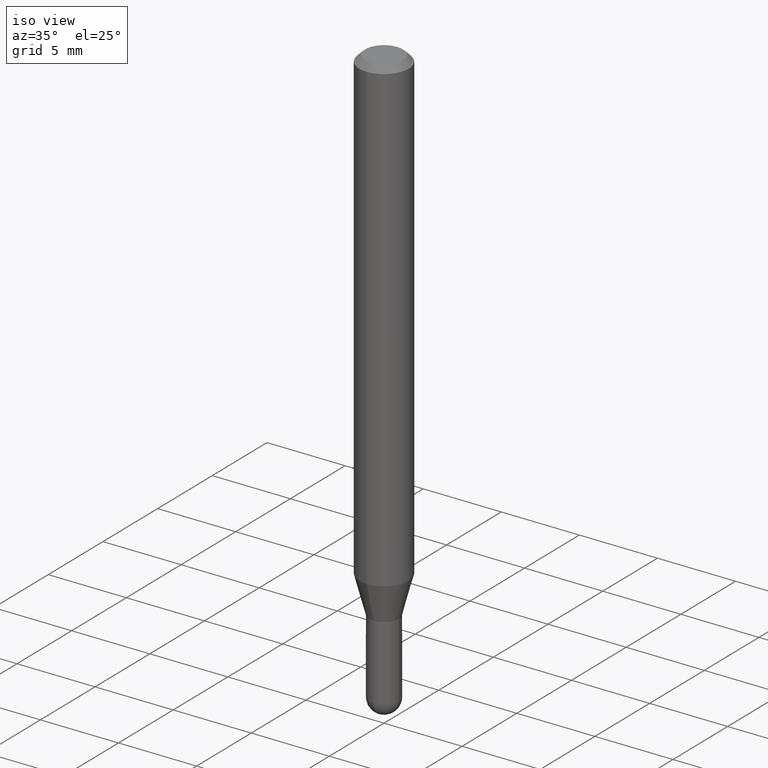
[diagram: clean part render]
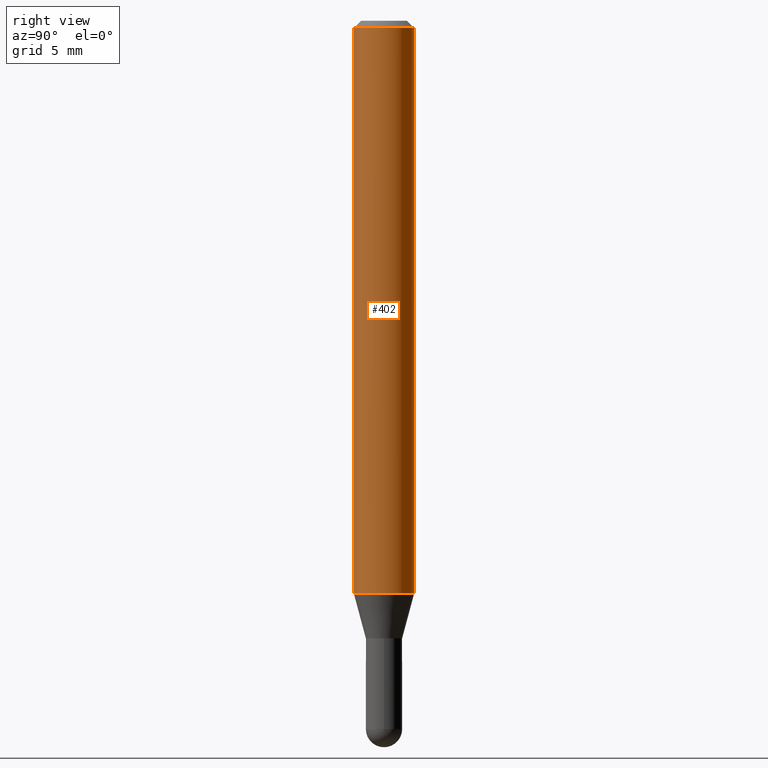
[diagram: tour spotlight — one face highlighted and labeled with its STEP entity id]
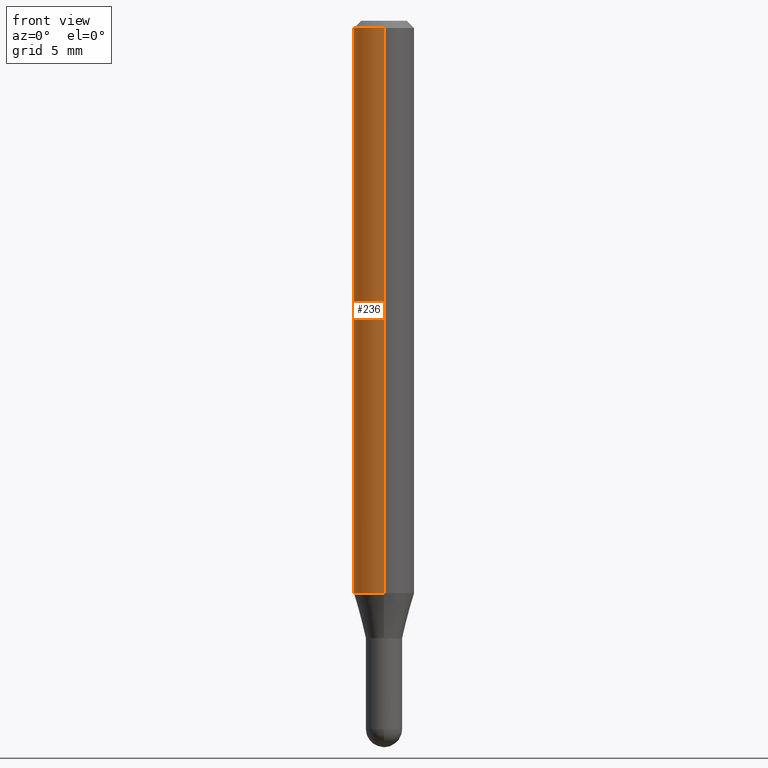
[diagram: tour spotlight — one face highlighted and labeled with its STEP entity id]
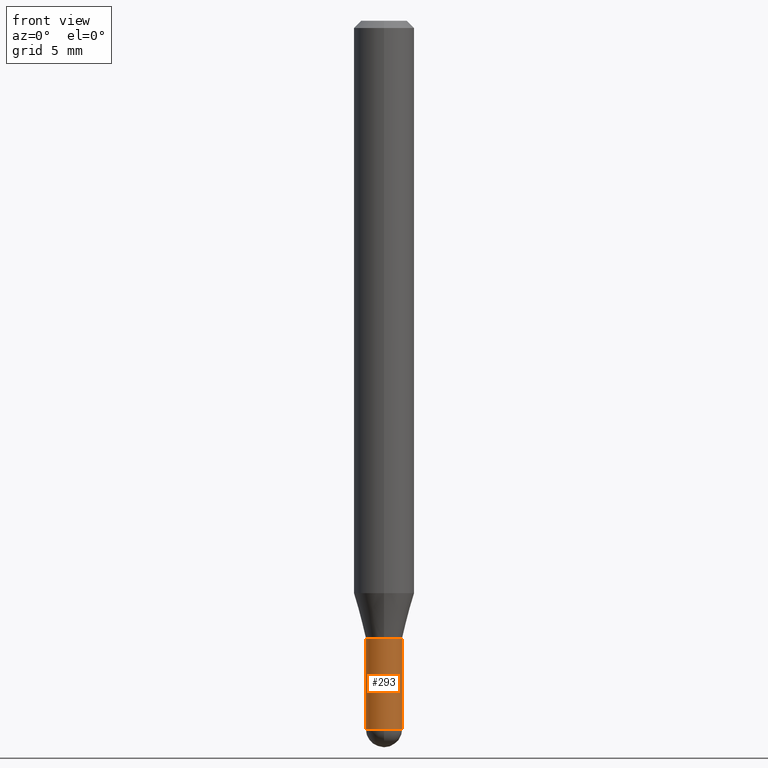
[diagram: tour spotlight — one face highlighted and labeled with its STEP entity id]
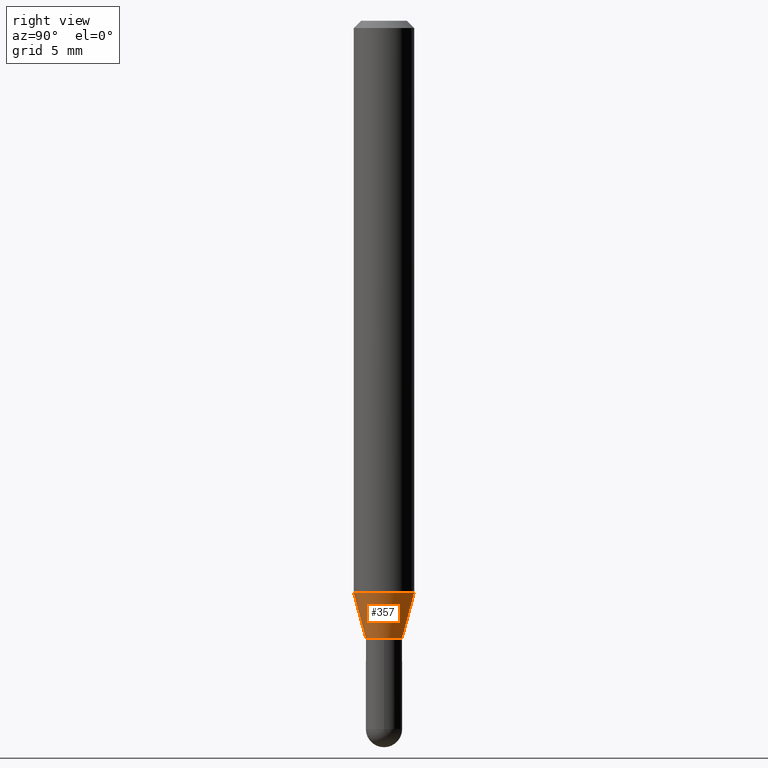
[diagram: tour spotlight — one face highlighted and labeled with its STEP entity id]
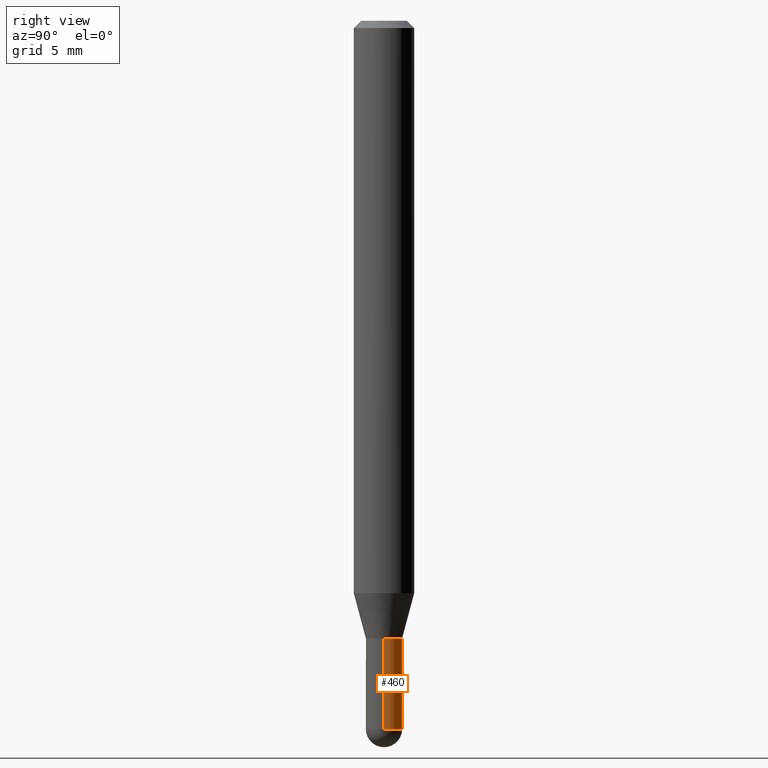
[diagram: tour spotlight — one face highlighted and labeled with its STEP entity id]
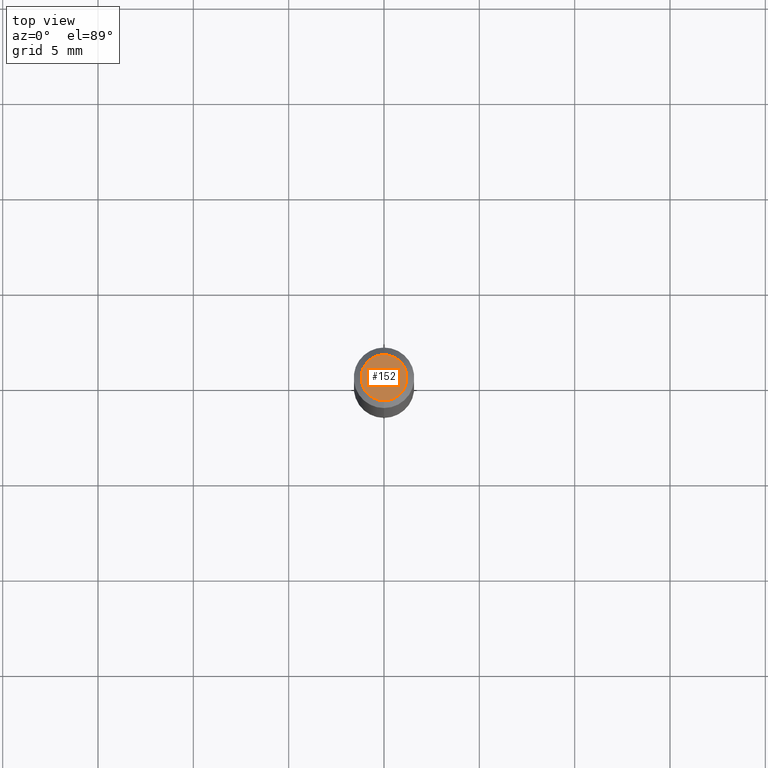
[diagram: tour spotlight — one face highlighted and labeled with its STEP entity id]
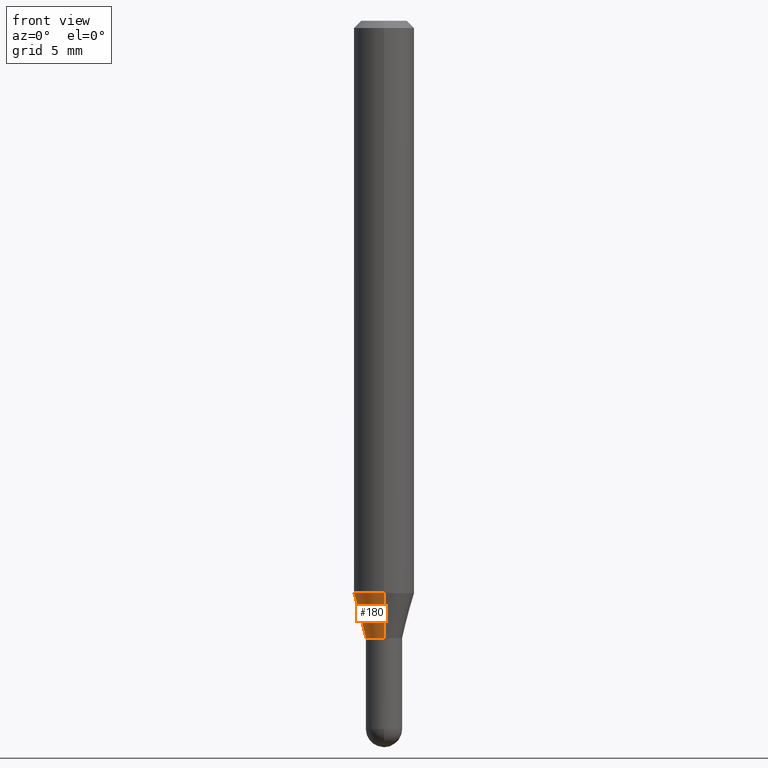
[diagram: tour spotlight — one face highlighted and labeled with its STEP entity id]
A machine part: a face-by-face anatomy tour. The part has 17 B-rep faces; the first image is the clean iso view, then the 7 largest visible faces are spotlighted one at a time (largest first), each with its STEP entity span.

Face 1 — right view, entity #402. In plain terms, the highlighted cylindrical surface (edge-blend (fillet) strip) has radius 1.5875 mm, axis along (-0, 0, 1).
Definition (entity closure, byte-faithful):
#33 = DIRECTION ( 'NONE',  ( -2.445363330842566879E-29, 3.491632385536988923E-15, 1.000000000000000000 ) ) ;
#34 = CARTESIAN_POINT ( 'NONE',  ( 2.889682741982522201E-29, -4.126057554955246622E-15, -1.181698729810781057 ) ) ;
#38 = LINE ( 'NONE', #351, #88 ) ;
#41 = AXIS2_PLACEMENT_3D ( 'NONE', #273, #426, #100 ) ;
#70 = AXIS2_PLACEMENT_3D ( 'NONE', #73, #33, #462 ) ;
#73 = CARTESIAN_POINT ( 'NONE',  ( 3.668044996263852701E-31, -5.237448578305486515E-17, -0.01500000000000000812 ) ) ;
#75 = VERTEX_POINT ( 'NONE', #299 ) ;
#87 = CIRCLE ( 'NONE', #417, 0.06250000000000000000 ) ;
#88 = VECTOR ( 'NONE', #508, 39.37007874015748143 ) ;
#100 = DIRECTION ( 'NONE',  ( -6.982962677686265922E-15, -1.000000000000000000, 3.491632385536988923E-15 ) ) ;
#127 = DIRECTION ( 'NONE',  ( -2.445363330842566879E-29, 3.491632385536988923E-15, 1.000000000000000000 ) ) ;
#157 = VERTEX_POINT ( 'NONE', #192 ) ;
#166 = DIRECTION ( 'NONE',  ( -6.982962677686265922E-15, -1.000000000000000000, 4.370956789862821150E-15 ) ) ;
#174 = CARTESIAN_POINT ( 'NONE',  ( 4.440892098500915082E-16, 0.06249999999999993755, -0.01500000000000022669 ) ) ;
#189 = EDGE_CURVE ( 'NONE', #75, #288, #385, .T. ) ;
#192 = CARTESIAN_POINT ( 'NONE',  ( -4.364351673553630239E-16, -0.06250000000000416334, -1.181698729810780613 ) ) ;
#201 = EDGE_CURVE ( 'NONE', #157, #75, #87, .T. ) ;
#268 = CYLINDRICAL_SURFACE ( 'NONE', #41, 0.06250000000000000000 ) ;
#273 = CARTESIAN_POINT ( 'NONE',  ( 0.000000000000000000, 0.000000000000000000, 0.000000000000000000 ) ) ;
#275 = CARTESIAN_POINT ( 'NONE',  ( 4.440892098500625669E-16, 0.06250000000000000000, -2.182270240960618077E-16 ) ) ;
#288 = VERTEX_POINT ( 'NONE', #174 ) ;
#290 = EDGE_LOOP ( 'NONE', ( #459, #425, #327, #370 ) ) ;
#299 = CARTESIAN_POINT ( 'NONE',  ( 4.440892098500911138E-16, 0.06249999999999584360, -1.181698729810781279 ) ) ;
#304 = DIRECTION ( 'NONE',  ( -2.445363330842566599E-29, 3.491632385536988923E-15, 1.000000000000000000 ) ) ;
#327 = ORIENTED_EDGE ( 'NONE', *, *, #422, .F. ) ;
#340 = VERTEX_POINT ( 'NONE', #492 ) ;
#350 = VECTOR ( 'NONE', #304, 39.37007874015748143 ) ;
#351 = CARTESIAN_POINT ( 'NONE',  ( -4.364351673553916201E-16, -0.06250000000000000000, 2.182270240960618077E-16 ) ) ;
#370 = ORIENTED_EDGE ( 'NONE', *, *, #499, .F. ) ;
#385 = LINE ( 'NONE', #275, #350 ) ;
#402 = ADVANCED_FACE ( 'NONE', ( #461 ), #268, .T. ) ;
#417 = AXIS2_PLACEMENT_3D ( 'NONE', #34, #127, #166 ) ;
#422 = EDGE_CURVE ( 'NONE', #340, #288, #481, .T. ) ;
#425 = ORIENTED_EDGE ( 'NONE', *, *, #189, .T. ) ;
#426 = DIRECTION ( 'NONE',  ( -2.445363330842566879E-29, 3.491632385536988923E-15, 1.000000000000000000 ) ) ;
#459 = ORIENTED_EDGE ( 'NONE', *, *, #201, .T. ) ;
#461 = FACE_OUTER_BOUND ( 'NONE', #290, .T. ) ;
#462 = DIRECTION ( 'NONE',  ( -6.982962677686265922E-15, -1.000000000000000000, 3.483106191921935554E-15 ) ) ;
#481 = CIRCLE ( 'NONE', #70, 0.06250000000000000000 ) ;
#492 = CARTESIAN_POINT ( 'NONE',  ( -4.364351673553912750E-16, -0.06250000000000005551, -0.01499999999999979128 ) ) ;
#499 = EDGE_CURVE ( 'NONE', #157, #340, #38, .T. ) ;
#508 = DIRECTION ( 'NONE',  ( -2.445363330842566599E-29, 3.491632385536988923E-15, 1.000000000000000000 ) ) ;

Face 2 — front view, entity #236. In plain terms, the highlighted cylindrical surface (edge-blend (fillet) strip) has radius 1.5875 mm, axis along (-0, 0, 1).
Definition (entity closure, byte-faithful):
#8 = DIRECTION ( 'NONE',  ( -2.445363330842566879E-29, 3.491632385536988923E-15, 1.000000000000000000 ) ) ;
#16 = DIRECTION ( 'NONE',  ( -6.982962677686265922E-15, -1.000000000000000000, 3.483106191921935554E-15 ) ) ;
#21 = CIRCLE ( 'NONE', #241, 0.06250000000000000000 ) ;
#28 = DIRECTION ( 'NONE',  ( -6.982962677686265922E-15, -1.000000000000000000, 4.370956789862821150E-15 ) ) ;
#38 = LINE ( 'NONE', #351, #88 ) ;
#75 = VERTEX_POINT ( 'NONE', #299 ) ;
#88 = VECTOR ( 'NONE', #508, 39.37007874015748143 ) ;
#92 = CARTESIAN_POINT ( 'NONE',  ( 3.668044996263852701E-31, -5.237448578305486515E-17, -0.01500000000000000812 ) ) ;
#141 = DIRECTION ( 'NONE',  ( -2.445363330842566879E-29, 3.491632385536988923E-15, 1.000000000000000000 ) ) ;
#155 = ORIENTED_EDGE ( 'NONE', *, *, #278, .F. ) ;
#157 = VERTEX_POINT ( 'NONE', #192 ) ;
#163 = DIRECTION ( 'NONE',  ( -6.982962677686265922E-15, -1.000000000000000000, 3.491632385536988923E-15 ) ) ;
#174 = CARTESIAN_POINT ( 'NONE',  ( 4.440892098500915082E-16, 0.06249999999999993755, -0.01500000000000022669 ) ) ;
#189 = EDGE_CURVE ( 'NONE', #75, #288, #385, .T. ) ;
#192 = CARTESIAN_POINT ( 'NONE',  ( -4.364351673553630239E-16, -0.06250000000000416334, -1.181698729810780613 ) ) ;
#199 = FACE_OUTER_BOUND ( 'NONE', #316, .T. ) ;
#236 = ADVANCED_FACE ( 'NONE', ( #199 ), #361, .T. ) ;
#241 = AXIS2_PLACEMENT_3D ( 'NONE', #346, #141, #28 ) ;
#249 = ORIENTED_EDGE ( 'NONE', *, *, #189, .F. ) ;
#275 = CARTESIAN_POINT ( 'NONE',  ( 4.440892098500625669E-16, 0.06250000000000000000, -2.182270240960618077E-16 ) ) ;
#278 = EDGE_CURVE ( 'NONE', #288, #340, #286, .T. ) ;
#286 = CIRCLE ( 'NONE', #309, 0.06250000000000000000 ) ;
#288 = VERTEX_POINT ( 'NONE', #174 ) ;
#294 = DIRECTION ( 'NONE',  ( -2.445363330842566879E-29, 3.491632385536988923E-15, 1.000000000000000000 ) ) ;
#299 = CARTESIAN_POINT ( 'NONE',  ( 4.440892098500911138E-16, 0.06249999999999584360, -1.181698729810781279 ) ) ;
#304 = DIRECTION ( 'NONE',  ( -2.445363330842566599E-29, 3.491632385536988923E-15, 1.000000000000000000 ) ) ;
#309 = AXIS2_PLACEMENT_3D ( 'NONE', #92, #294, #16 ) ;
#316 = EDGE_LOOP ( 'NONE', ( #249, #472, #485, #155 ) ) ;
#340 = VERTEX_POINT ( 'NONE', #492 ) ;
#346 = CARTESIAN_POINT ( 'NONE',  ( 2.889682741982522201E-29, -4.126057554955246622E-15, -1.181698729810781057 ) ) ;
#350 = VECTOR ( 'NONE', #304, 39.37007874015748143 ) ;
#351 = CARTESIAN_POINT ( 'NONE',  ( -4.364351673553916201E-16, -0.06250000000000000000, 2.182270240960618077E-16 ) ) ;
#361 = CYLINDRICAL_SURFACE ( 'NONE', #449, 0.06250000000000000000 ) ;
#365 = CARTESIAN_POINT ( 'NONE',  ( 0.000000000000000000, 0.000000000000000000, 0.000000000000000000 ) ) ;
#385 = LINE ( 'NONE', #275, #350 ) ;
#427 = EDGE_CURVE ( 'NONE', #75, #157, #21, .T. ) ;
#449 = AXIS2_PLACEMENT_3D ( 'NONE', #365, #8, #163 ) ;
#472 = ORIENTED_EDGE ( 'NONE', *, *, #427, .T. ) ;
#485 = ORIENTED_EDGE ( 'NONE', *, *, #499, .T. ) ;
#492 = CARTESIAN_POINT ( 'NONE',  ( -4.364351673553912750E-16, -0.06250000000000005551, -0.01499999999999979128 ) ) ;
#499 = EDGE_CURVE ( 'NONE', #157, #340, #38, .T. ) ;
#508 = DIRECTION ( 'NONE',  ( -2.445363330842566599E-29, 3.491632385536988923E-15, 1.000000000000000000 ) ) ;

Face 3 — front view, entity #293. In plain terms, the highlighted cylindrical surface (edge-blend (fillet) strip) has radius 0.9525 mm, axis along (-0, 0, 1).
Definition (entity closure, byte-faithful):
#2 = EDGE_CURVE ( 'NONE', #95, #86, #20, .T. ) ;
#19 = DIRECTION ( 'NONE',  ( 1.000000000000000000, -6.982962677686268288E-15, 0.000000000000000000 ) ) ;
#20 = CIRCLE ( 'NONE', #343, 0.03749999999999999861 ) ;
#24 = CARTESIAN_POINT ( 'NONE',  ( 3.576498129045762161E-29, -5.106291458058100676E-15, -1.462500000000000133 ) ) ;
#40 = AXIS2_PLACEMENT_3D ( 'NONE', #24, #130, #66 ) ;
#44 = DIRECTION ( 'NONE',  ( -2.445468806185136877E-29, 3.491481338843145188E-15, 1.000000000000000000 ) ) ;
#45 = EDGE_CURVE ( 'NONE', #86, #401, #138, .T. ) ;
#47 = VERTEX_POINT ( 'NONE', #495 ) ;
#49 = AXIS2_PLACEMENT_3D ( 'NONE', #380, #56, #453 ) ;
#54 = ORIENTED_EDGE ( 'NONE', *, *, #45, .T. ) ;
#56 = DIRECTION ( 'NONE',  ( -2.445468806185136597E-29, 3.491481338843145583E-15, 1.000000000000000000 ) ) ;
#60 = DIRECTION ( 'NONE',  ( -2.445468806185136597E-29, 3.491481338843145583E-15, 1.000000000000000000 ) ) ;
#66 = DIRECTION ( 'NONE',  ( 1.000000000000000000, -6.982962677686268288E-15, 0.000000000000000000 ) ) ;
#71 = EDGE_CURVE ( 'NONE', #401, #409, #374, .T. ) ;
#86 = VERTEX_POINT ( 'NONE', #146 ) ;
#94 = DIRECTION ( 'NONE',  ( -2.445468806185136597E-29, 3.491481338843145583E-15, 1.000000000000000000 ) ) ;
#95 = VERTEX_POINT ( 'NONE', #502 ) ;
#98 = ORIENTED_EDGE ( 'NONE', *, *, #2, .T. ) ;
#105 = VECTOR ( 'NONE', #292, 39.37007874015748143 ) ;
#130 = DIRECTION ( 'NONE',  ( -2.445468806185136597E-29, 3.491481338843145583E-15, 1.000000000000000000 ) ) ;
#135 = CARTESIAN_POINT ( 'NONE',  ( 0.03749999999999999861, -2.618611004132350016E-16, 1.828566290923475922E-30 ) ) ;
#137 = CYLINDRICAL_SURFACE ( 'NONE', #49, 0.03749999999999999861 ) ;
#138 = CIRCLE ( 'NONE', #40, 0.03749999999999999861 ) ;
#146 = CARTESIAN_POINT ( 'NONE',  ( -2.618611004131998480E-16, -0.03750000000000520278, -1.462500000000000133 ) ) ;
#151 = CARTESIAN_POINT ( 'NONE',  ( 0.03749999999999999861, -5.040826182954790742E-15, -1.462500000000000133 ) ) ;
#190 = CARTESIAN_POINT ( 'NONE',  ( 0.03749999999999999861, -4.713499807438246596E-15, -1.275000000000000133 ) ) ;
#200 = EDGE_LOOP ( 'NONE', ( #405, #98, #54, #416, #285 ) ) ;
#203 = CARTESIAN_POINT ( 'NONE',  ( -0.03749999999999999861, 2.664535259100375598E-16, -1.844600658845589808E-30 ) ) ;
#208 = EDGE_CURVE ( 'NONE', #95, #47, #289, .T. ) ;
#255 = FACE_OUTER_BOUND ( 'NONE', #200, .T. ) ;
#269 = CIRCLE ( 'NONE', #432, 0.03749999999999999861 ) ;
#285 = ORIENTED_EDGE ( 'NONE', *, *, #339, .F. ) ;
#289 = LINE ( 'NONE', #203, #487 ) ;
#292 = DIRECTION ( 'NONE',  ( -2.445468806185136877E-29, 3.491481338843145188E-15, 1.000000000000000000 ) ) ;
#293 = ADVANCED_FACE ( 'NONE', ( #255 ), #137, .T. ) ;
#297 = DIRECTION ( 'NONE',  ( 1.000000000000000000, -6.982962677686268288E-15, 0.000000000000000000 ) ) ;
#339 = EDGE_CURVE ( 'NONE', #47, #409, #269, .T. ) ;
#343 = AXIS2_PLACEMENT_3D ( 'NONE', #377, #60, #297 ) ;
#374 = LINE ( 'NONE', #135, #105 ) ;
#376 = CARTESIAN_POINT ( 'NONE',  ( 3.117972727886049049E-29, -4.451638707025011594E-15, -1.275000000000000133 ) ) ;
#377 = CARTESIAN_POINT ( 'NONE',  ( 3.576498129045762161E-29, -5.106291458058100676E-15, -1.462500000000000133 ) ) ;
#380 = CARTESIAN_POINT ( 'NONE',  ( 0.000000000000000000, 0.000000000000000000, 0.000000000000000000 ) ) ;
#401 = VERTEX_POINT ( 'NONE', #151 ) ;
#405 = ORIENTED_EDGE ( 'NONE', *, *, #208, .F. ) ;
#409 = VERTEX_POINT ( 'NONE', #190 ) ;
#416 = ORIENTED_EDGE ( 'NONE', *, *, #71, .T. ) ;
#432 = AXIS2_PLACEMENT_3D ( 'NONE', #376, #94, #19 ) ;
#453 = DIRECTION ( 'NONE',  ( 1.000000000000000000, -6.982962677686266711E-15, 4.876176775795935793E-29 ) ) ;
#487 = VECTOR ( 'NONE', #44, 39.37007874015748143 ) ;
#495 = CARTESIAN_POINT ( 'NONE',  ( -0.03749999999999999861, -4.512511556631519117E-15, -1.275000000000000133 ) ) ;
#502 = CARTESIAN_POINT ( 'NONE',  ( -0.03749999999999999861, -4.512511556631519117E-15, -1.462500000000000133 ) ) ;

Face 4 — right view, entity #357. In plain terms, the highlighted conical surface has half-angle 15 deg.
Definition (entity closure, byte-faithful):
#4 = AXIS2_PLACEMENT_3D ( 'NONE', #172, #415, #341 ) ;
#29 = CIRCLE ( 'NONE', #318, 0.03749999999999991535 ) ;
#34 = CARTESIAN_POINT ( 'NONE',  ( 2.889682741982522201E-29, -4.126057554955246622E-15, -1.181698729810781057 ) ) ;
#39 = CARTESIAN_POINT ( 'NONE',  ( 3.552713678800798922E-16, 0.03749999999999546058, -1.275000000000000133 ) ) ;
#43 = CARTESIAN_POINT ( 'NONE',  ( 3.117838246824272799E-29, -4.451831291559661005E-15, -1.275000000000000133 ) ) ;
#46 = DIRECTION ( 'NONE',  ( -1.807323732225379443E-15, -0.2588190451025252359, 0.9659258262890670910 ) ) ;
#75 = VERTEX_POINT ( 'NONE', #299 ) ;
#87 = CIRCLE ( 'NONE', #417, 0.06250000000000000000 ) ;
#97 = CONICAL_SURFACE ( 'NONE', #4, 0.03749999999999991535, 0.2617993877991575680 ) ;
#102 = CARTESIAN_POINT ( 'NONE',  ( -2.618611004132032007E-16, -0.03750000000000437012, -1.275000000000000133 ) ) ;
#103 = LINE ( 'NONE', #466, #500 ) ;
#115 = LINE ( 'NONE', #235, #156 ) ;
#126 = ORIENTED_EDGE ( 'NONE', *, *, #224, .F. ) ;
#127 = DIRECTION ( 'NONE',  ( -2.445363330842566879E-29, 3.491632385536988923E-15, 1.000000000000000000 ) ) ;
#143 = VERTEX_POINT ( 'NONE', #39 ) ;
#156 = VECTOR ( 'NONE', #46, 39.37007874015748143 ) ;
#157 = VERTEX_POINT ( 'NONE', #192 ) ;
#166 = DIRECTION ( 'NONE',  ( -6.982962677686265922E-15, -1.000000000000000000, 4.370956789862821150E-15 ) ) ;
#170 = EDGE_CURVE ( 'NONE', #434, #143, #29, .T. ) ;
#172 = CARTESIAN_POINT ( 'NONE',  ( 3.117838246824272799E-29, -4.451831291559661005E-15, -1.275000000000000133 ) ) ;
#192 = CARTESIAN_POINT ( 'NONE',  ( -4.364351673553630239E-16, -0.06250000000000416334, -1.181698729810780613 ) ) ;
#197 = DIRECTION ( 'NONE',  ( -6.982962677686266711E-15, -1.000000000000000000, 0.000000000000000000 ) ) ;
#201 = EDGE_CURVE ( 'NONE', #157, #75, #87, .T. ) ;
#224 = EDGE_CURVE ( 'NONE', #434, #157, #115, .T. ) ;
#227 = DIRECTION ( 'NONE',  ( -2.445363330842566879E-29, 3.491632385536988923E-15, 1.000000000000000000 ) ) ;
#235 = CARTESIAN_POINT ( 'NONE',  ( -2.618611004132032007E-16, -0.03750000000000437012, -1.275000000000000133 ) ) ;
#240 = EDGE_LOOP ( 'NONE', ( #438, #483, #477, #126 ) ) ;
#258 = FACE_OUTER_BOUND ( 'NONE', #240, .T. ) ;
#299 = CARTESIAN_POINT ( 'NONE',  ( 4.440892098500911138E-16, 0.06249999999999584360, -1.181698729810781279 ) ) ;
#318 = AXIS2_PLACEMENT_3D ( 'NONE', #43, #227, #197 ) ;
#341 = DIRECTION ( 'NONE',  ( -6.982962677686266711E-15, -1.000000000000000000, 0.000000000000000000 ) ) ;
#348 = DIRECTION ( 'NONE',  ( 1.839019923739650408E-15, 0.2588190451025319527, 0.9659258262890650926 ) ) ;
#357 = ADVANCED_FACE ( 'NONE', ( #258 ), #97, .T. ) ;
#388 = EDGE_CURVE ( 'NONE', #143, #75, #103, .T. ) ;
#415 = DIRECTION ( 'NONE',  ( -2.445363330842566879E-29, 3.491632385536988923E-15, 1.000000000000000000 ) ) ;
#417 = AXIS2_PLACEMENT_3D ( 'NONE', #34, #127, #166 ) ;
#434 = VERTEX_POINT ( 'NONE', #102 ) ;
#438 = ORIENTED_EDGE ( 'NONE', *, *, #170, .T. ) ;
#466 = CARTESIAN_POINT ( 'NONE',  ( 2.664535259100681282E-16, 0.03749999999999546058, -1.275000000000000133 ) ) ;
#477 = ORIENTED_EDGE ( 'NONE', *, *, #201, .F. ) ;
#483 = ORIENTED_EDGE ( 'NONE', *, *, #388, .T. ) ;
#500 = VECTOR ( 'NONE', #348, 39.37007874015748854 ) ;

Face 5 — right view, entity #460. In plain terms, the highlighted cylindrical surface (edge-blend (fillet) strip) has radius 0.9525 mm, axis along (-0, 0, 1).
Definition (entity closure, byte-faithful):
#12 = AXIS2_PLACEMENT_3D ( 'NONE', #194, #228, #355 ) ;
#23 = CARTESIAN_POINT ( 'NONE',  ( 3.576498129045762161E-29, -5.106291458058100676E-15, -1.462500000000000133 ) ) ;
#25 = DIRECTION ( 'NONE',  ( -2.445468806185136597E-29, 3.491481338843145583E-15, 1.000000000000000000 ) ) ;
#31 = CIRCLE ( 'NONE', #328, 0.03749999999999999861 ) ;
#44 = DIRECTION ( 'NONE',  ( -2.445468806185136877E-29, 3.491481338843145188E-15, 1.000000000000000000 ) ) ;
#47 = VERTEX_POINT ( 'NONE', #495 ) ;
#71 = EDGE_CURVE ( 'NONE', #401, #409, #374, .T. ) ;
#80 = VERTEX_POINT ( 'NONE', #133 ) ;
#84 = EDGE_LOOP ( 'NONE', ( #212, #398, #429, #91, #182 ) ) ;
#91 = ORIENTED_EDGE ( 'NONE', *, *, #71, .F. ) ;
#95 = VERTEX_POINT ( 'NONE', #502 ) ;
#105 = VECTOR ( 'NONE', #292, 39.37007874015748143 ) ;
#133 = CARTESIAN_POINT ( 'NONE',  ( 2.664535259100738967E-16, 0.03749999999999498179, -1.462500000000000133 ) ) ;
#135 = CARTESIAN_POINT ( 'NONE',  ( 0.03749999999999999861, -2.618611004132350016E-16, 1.828566290923475922E-30 ) ) ;
#151 = CARTESIAN_POINT ( 'NONE',  ( 0.03749999999999999861, -5.040826182954790742E-15, -1.462500000000000133 ) ) ;
#158 = CIRCLE ( 'NONE', #360, 0.03749999999999999861 ) ;
#181 = DIRECTION ( 'NONE',  ( -2.445468806185136597E-29, 3.491481338843145583E-15, 1.000000000000000000 ) ) ;
#182 = ORIENTED_EDGE ( 'NONE', *, *, #379, .T. ) ;
#190 = CARTESIAN_POINT ( 'NONE',  ( 0.03749999999999999861, -4.713499807438246596E-15, -1.275000000000000133 ) ) ;
#194 = CARTESIAN_POINT ( 'NONE',  ( 0.000000000000000000, 0.000000000000000000, 0.000000000000000000 ) ) ;
#196 = FACE_OUTER_BOUND ( 'NONE', #84, .T. ) ;
#203 = CARTESIAN_POINT ( 'NONE',  ( -0.03749999999999999861, 2.664535259100375598E-16, -1.844600658845589808E-30 ) ) ;
#208 = EDGE_CURVE ( 'NONE', #95, #47, #289, .T. ) ;
#212 = ORIENTED_EDGE ( 'NONE', *, *, #368, .T. ) ;
#228 = DIRECTION ( 'NONE',  ( -2.445468806185136597E-29, 3.491481338843145583E-15, 1.000000000000000000 ) ) ;
#289 = LINE ( 'NONE', #203, #487 ) ;
#292 = DIRECTION ( 'NONE',  ( -2.445468806185136877E-29, 3.491481338843145188E-15, 1.000000000000000000 ) ) ;
#298 = CARTESIAN_POINT ( 'NONE',  ( 3.117972727886049049E-29, -4.451638707025011594E-15, -1.275000000000000133 ) ) ;
#302 = DIRECTION ( 'NONE',  ( 1.000000000000000000, -6.982962677686268288E-15, 0.000000000000000000 ) ) ;
#308 = CYLINDRICAL_SURFACE ( 'NONE', #12, 0.03749999999999999861 ) ;
#328 = AXIS2_PLACEMENT_3D ( 'NONE', #23, #181, #382 ) ;
#355 = DIRECTION ( 'NONE',  ( 1.000000000000000000, -6.982962677686266711E-15, 4.876176775795935793E-29 ) ) ;
#360 = AXIS2_PLACEMENT_3D ( 'NONE', #447, #384, #302 ) ;
#368 = EDGE_CURVE ( 'NONE', #80, #95, #31, .T. ) ;
#373 = EDGE_CURVE ( 'NONE', #409, #47, #471, .T. ) ;
#374 = LINE ( 'NONE', #135, #105 ) ;
#379 = EDGE_CURVE ( 'NONE', #401, #80, #158, .T. ) ;
#382 = DIRECTION ( 'NONE',  ( 1.000000000000000000, -6.982962677686268288E-15, 0.000000000000000000 ) ) ;
#384 = DIRECTION ( 'NONE',  ( -2.445468806185136597E-29, 3.491481338843145583E-15, 1.000000000000000000 ) ) ;
#387 = AXIS2_PLACEMENT_3D ( 'NONE', #298, #25, #496 ) ;
#398 = ORIENTED_EDGE ( 'NONE', *, *, #208, .T. ) ;
#401 = VERTEX_POINT ( 'NONE', #151 ) ;
#409 = VERTEX_POINT ( 'NONE', #190 ) ;
#429 = ORIENTED_EDGE ( 'NONE', *, *, #373, .F. ) ;
#447 = CARTESIAN_POINT ( 'NONE',  ( 3.576498129045762161E-29, -5.106291458058100676E-15, -1.462500000000000133 ) ) ;
#460 = ADVANCED_FACE ( 'NONE', ( #196 ), #308, .T. ) ;
#471 = CIRCLE ( 'NONE', #387, 0.03749999999999999861 ) ;
#487 = VECTOR ( 'NONE', #44, 39.37007874015748143 ) ;
#495 = CARTESIAN_POINT ( 'NONE',  ( -0.03749999999999999861, -4.512511556631519117E-15, -1.275000000000000133 ) ) ;
#496 = DIRECTION ( 'NONE',  ( 1.000000000000000000, -6.982962677686268288E-15, 0.000000000000000000 ) ) ;
#502 = CARTESIAN_POINT ( 'NONE',  ( -0.03749999999999999861, -4.512511556631519117E-15, -1.462500000000000133 ) ) ;

Face 6 — top view, entity #152. In plain terms, the highlighted planar face has unit normal (0, -0, -1).
Definition (entity closure, byte-faithful):
#5 = VERTEX_POINT ( 'NONE', #68 ) ;
#30 = CARTESIAN_POINT ( 'NONE',  ( 3.316907271900976096E-16, 0.04749999999999999362, -1.702791107499437497E-16 ) ) ;
#36 = PLANE ( 'NONE',  #184 ) ;
#68 = CARTESIAN_POINT ( 'NONE',  ( 3.840629472727447874E-16, 0.04749999999999999362, -1.747056831868805136E-16 ) ) ;
#74 = DIRECTION ( 'NONE',  ( 2.445363330842566599E-29, -3.491632385536988923E-15, -1.000000000000000000 ) ) ;
#106 = FACE_OUTER_BOUND ( 'NONE', #372, .T. ) ;
#108 = CARTESIAN_POINT ( 'NONE',  ( 2.164915583720718990E-46, -3.091192735546762103E-32, -8.853144873873535665E-18 ) ) ;
#131 = AXIS2_PLACEMENT_3D ( 'NONE', #108, #345, #501 ) ;
#134 = DIRECTION ( 'NONE',  ( -2.445363330842566879E-29, 3.491632385536988923E-15, 1.000000000000000000 ) ) ;
#139 = AXIS2_PLACEMENT_3D ( 'NONE', #291, #134, #411 ) ;
#147 = VERTEX_POINT ( 'NONE', #314 ) ;
#152 = ADVANCED_FACE ( 'NONE', ( #106 ), #36, .F. ) ;
#167 = ORIENTED_EDGE ( 'NONE', *, *, #509, .T. ) ;
#169 = CIRCLE ( 'NONE', #131, 0.04749999999999999362 ) ;
#184 = AXIS2_PLACEMENT_3D ( 'NONE', #30, #74, #353 ) ;
#204 = ORIENTED_EDGE ( 'NONE', *, *, #284, .T. ) ;
#284 = EDGE_CURVE ( 'NONE', #147, #5, #488, .T. ) ;
#291 = CARTESIAN_POINT ( 'NONE',  ( 2.164915583720718990E-46, -3.091192735546762103E-32, -8.853144873873535665E-18 ) ) ;
#314 = CARTESIAN_POINT ( 'NONE',  ( -3.773273898774340269E-16, -0.04749999999999999362, 1.569993934391334331E-16 ) ) ;
#345 = DIRECTION ( 'NONE',  ( -2.445363330842566879E-29, 3.491632385536988923E-15, 1.000000000000000000 ) ) ;
#353 = DIRECTION ( 'NONE',  ( 6.982962677686265922E-15, 1.000000000000000000, -3.491632385536988923E-15 ) ) ;
#372 = EDGE_LOOP ( 'NONE', ( #167, #204 ) ) ;
#411 = DIRECTION ( 'NONE',  ( -6.982962677686266711E-15, -1.000000000000000000, 3.491632385536989712E-15 ) ) ;
#488 = CIRCLE ( 'NONE', #139, 0.04749999999999999362 ) ;
#501 = DIRECTION ( 'NONE',  ( -6.982962677686266711E-15, -1.000000000000000000, 3.491632385536989712E-15 ) ) ;
#509 = EDGE_CURVE ( 'NONE', #5, #147, #169, .T. ) ;

Face 7 — front view, entity #180. In plain terms, the highlighted conical surface has half-angle 15 deg.
Definition (entity closure, byte-faithful):
#21 = CIRCLE ( 'NONE', #241, 0.06250000000000000000 ) ;
#28 = DIRECTION ( 'NONE',  ( -6.982962677686265922E-15, -1.000000000000000000, 4.370956789862821150E-15 ) ) ;
#39 = CARTESIAN_POINT ( 'NONE',  ( 3.552713678800798922E-16, 0.03749999999999546058, -1.275000000000000133 ) ) ;
#46 = DIRECTION ( 'NONE',  ( -1.807323732225379443E-15, -0.2588190451025252359, 0.9659258262890670910 ) ) ;
#62 = AXIS2_PLACEMENT_3D ( 'NONE', #441, #243, #205 ) ;
#75 = VERTEX_POINT ( 'NONE', #299 ) ;
#96 = CIRCLE ( 'NONE', #62, 0.03749999999999991535 ) ;
#102 = CARTESIAN_POINT ( 'NONE',  ( -2.618611004132032007E-16, -0.03750000000000437012, -1.275000000000000133 ) ) ;
#103 = LINE ( 'NONE', #466, #500 ) ;
#115 = LINE ( 'NONE', #235, #156 ) ;
#116 = ORIENTED_EDGE ( 'NONE', *, *, #246, .T. ) ;
#141 = DIRECTION ( 'NONE',  ( -2.445363330842566879E-29, 3.491632385536988923E-15, 1.000000000000000000 ) ) ;
#143 = VERTEX_POINT ( 'NONE', #39 ) ;
#154 = DIRECTION ( 'NONE',  ( -2.445363330842566879E-29, 3.491632385536988923E-15, 1.000000000000000000 ) ) ;
#156 = VECTOR ( 'NONE', #46, 39.37007874015748143 ) ;
#157 = VERTEX_POINT ( 'NONE', #192 ) ;
#171 = ORIENTED_EDGE ( 'NONE', *, *, #427, .F. ) ;
#180 = ADVANCED_FACE ( 'NONE', ( #356 ), #506, .T. ) ;
#192 = CARTESIAN_POINT ( 'NONE',  ( -4.364351673553630239E-16, -0.06250000000000416334, -1.181698729810780613 ) ) ;
#205 = DIRECTION ( 'NONE',  ( -6.982962677686266711E-15, -1.000000000000000000, 0.000000000000000000 ) ) ;
#224 = EDGE_CURVE ( 'NONE', #434, #157, #115, .T. ) ;
#235 = CARTESIAN_POINT ( 'NONE',  ( -2.618611004132032007E-16, -0.03750000000000437012, -1.275000000000000133 ) ) ;
#241 = AXIS2_PLACEMENT_3D ( 'NONE', #346, #141, #28 ) ;
#243 = DIRECTION ( 'NONE',  ( -2.445363330842566879E-29, 3.491632385536988923E-15, 1.000000000000000000 ) ) ;
#246 = EDGE_CURVE ( 'NONE', #143, #434, #96, .T. ) ;
#282 = ORIENTED_EDGE ( 'NONE', *, *, #388, .F. ) ;
#299 = CARTESIAN_POINT ( 'NONE',  ( 4.440892098500911138E-16, 0.06249999999999584360, -1.181698729810781279 ) ) ;
#330 = ORIENTED_EDGE ( 'NONE', *, *, #224, .T. ) ;
#346 = CARTESIAN_POINT ( 'NONE',  ( 2.889682741982522201E-29, -4.126057554955246622E-15, -1.181698729810781057 ) ) ;
#348 = DIRECTION ( 'NONE',  ( 1.839019923739650408E-15, 0.2588190451025319527, 0.9659258262890650926 ) ) ;
#356 = FACE_OUTER_BOUND ( 'NONE', #381, .T. ) ;
#359 = AXIS2_PLACEMENT_3D ( 'NONE', #511, #154, #469 ) ;
#381 = EDGE_LOOP ( 'NONE', ( #282, #116, #330, #171 ) ) ;
#388 = EDGE_CURVE ( 'NONE', #143, #75, #103, .T. ) ;
#427 = EDGE_CURVE ( 'NONE', #75, #157, #21, .T. ) ;
#434 = VERTEX_POINT ( 'NONE', #102 ) ;
#441 = CARTESIAN_POINT ( 'NONE',  ( 3.117838246824272799E-29, -4.451831291559661005E-15, -1.275000000000000133 ) ) ;
#466 = CARTESIAN_POINT ( 'NONE',  ( 2.664535259100681282E-16, 0.03749999999999546058, -1.275000000000000133 ) ) ;
#469 = DIRECTION ( 'NONE',  ( -6.982962677686266711E-15, -1.000000000000000000, 0.000000000000000000 ) ) ;
#500 = VECTOR ( 'NONE', #348, 39.37007874015748854 ) ;
#506 = CONICAL_SURFACE ( 'NONE', #359, 0.03749999999999991535, 0.2617993877991575680 ) ;
#511 = CARTESIAN_POINT ( 'NONE',  ( 3.117838246824272799E-29, -4.451831291559661005E-15, -1.275000000000000133 ) ) ;